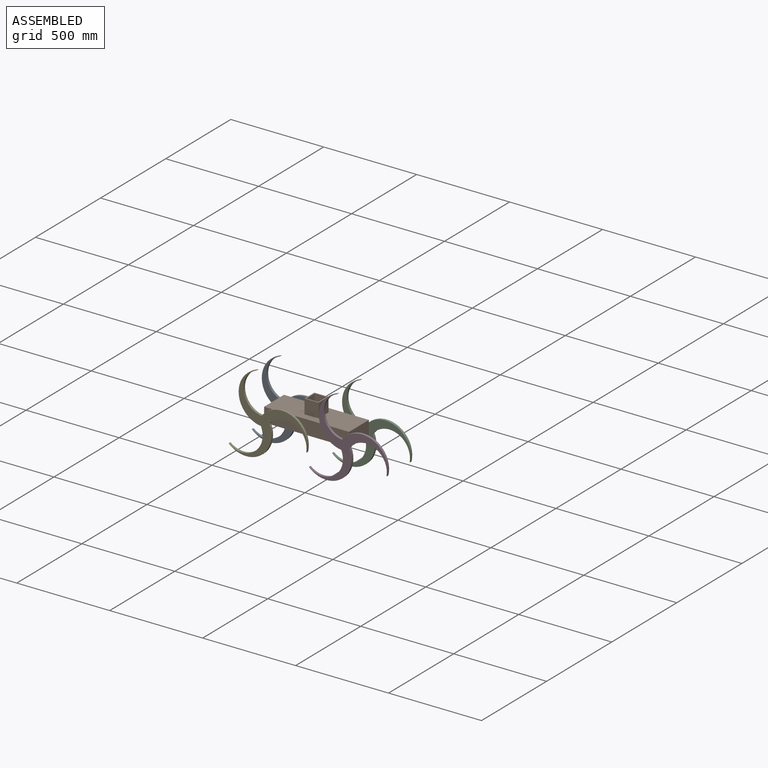
[diagram: assembled view]
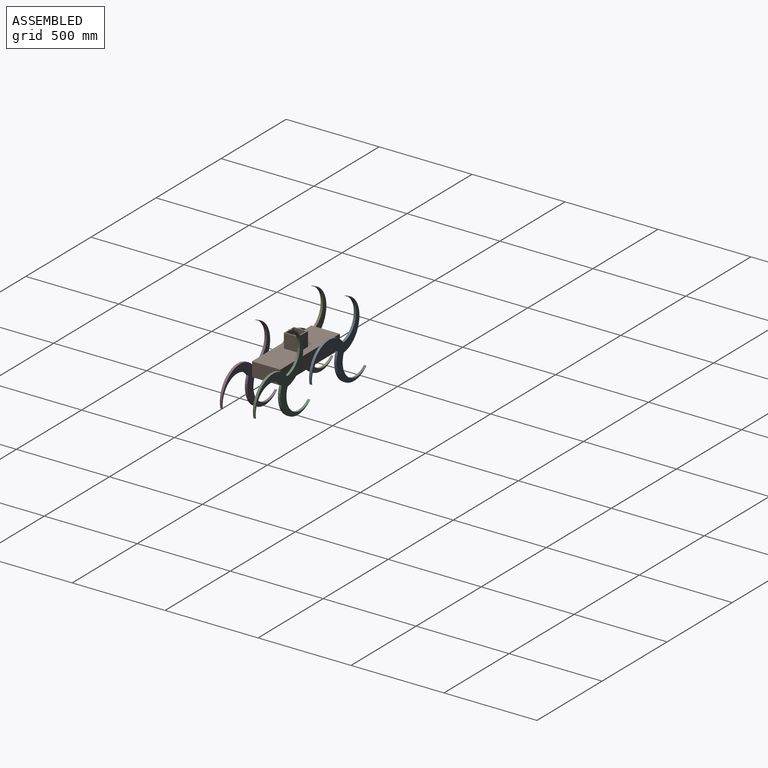
[diagram: assembled view, second angle]
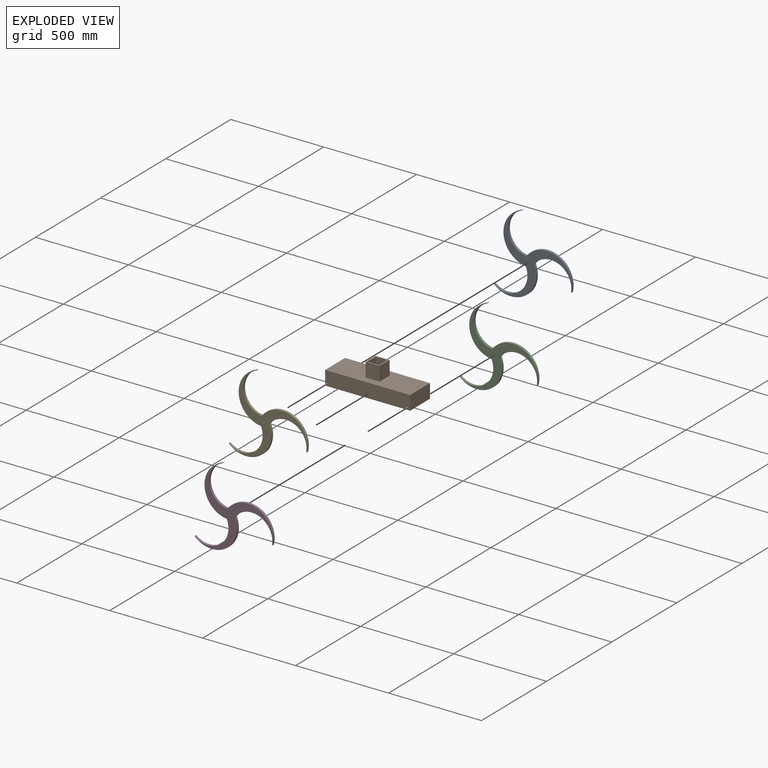
[diagram: exploded view]
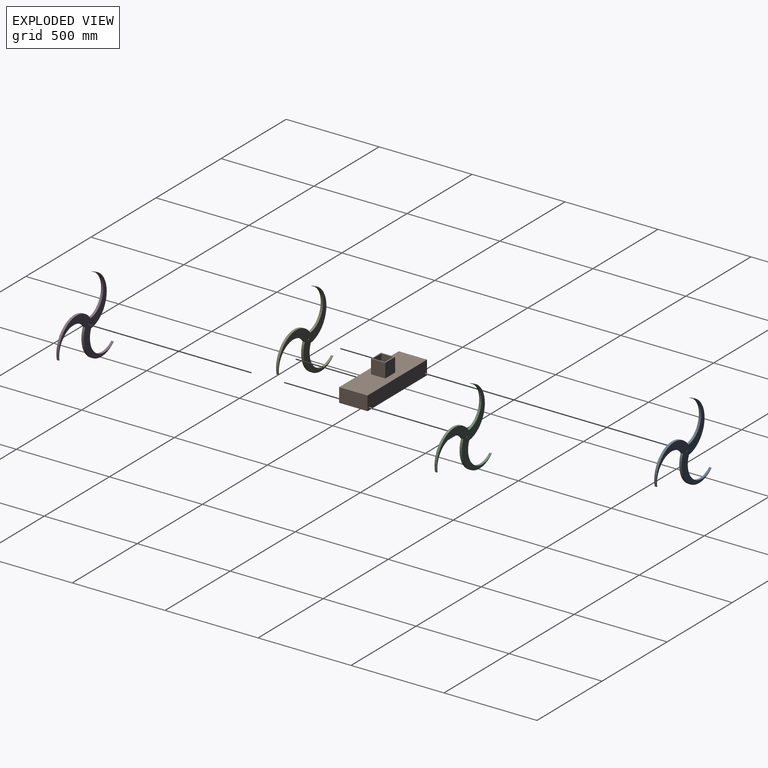
[diagram: exploded view, second angle]
ASSEMBLY  parts=5 mates=8
PART A: 12 faces, bbox 422.9x12.7x433.8 mm
  f0: cylinder r=110.97mm len=182.3mm, axis (0,1,0), area 3768.6mm2, adj f1,f8,f10,f11
  f1: cylinder r=136.37mm len=266.35mm, axis (0,1,0), area 4745.3mm2, adj f0,f2,f10,f11
  f2: plane 12.7x1.26mm, normal (-0.99,0,0.12), area 16.1mm2, adj f1,f3,f10,f11
  f3: cylinder r=110.97mm len=214.47mm, axis (0,1,0), area 3768.6mm2, adj f2,f4,f10,f11
  f4: cylinder r=136.37mm len=245.58mm, axis (0,1,0), area 4745.3mm2, adj f3,f5,f10,f11
  f5: plane 12.7x1.17mm, normal (0.4,0,-0.92), area 16.1mm2, adj f4,f6,f10,f11
  f6: cylinder r=110.97mm len=199.84mm, axis (0,1,0), area 3768.6mm2, adj f5,f7,f10,f11
  f7: cylinder r=136.37mm len=230.71mm, axis (0,1,0), area 4745.3mm2, adj f6,f8,f10,f11
  f8: plane 12.7x1.02mm, normal (0.6,0,0.8), area 16.1mm2, adj f0,f7,f10,f11
  f9: cylinder r=3.17mm len=12.7mm, axis (0,1,0), area 253.4mm2, adj f10,f11
  f10: plane 433.76x422.92mm, normal (0,-1,0), area 28408.7mm2, adj f0,f1,f2,f3,f4,f5,f6,f7
  f11: plane 433.76x422.92mm, normal (0,1,0), area 28408.7mm2, adj f0,f1,f2,f3,f4,f5,f6,f7
PART B: 24 faces, bbox 190.5x457.2x152.4 mm
  f0: plane 76.2x76.2mm, normal (0,0,1), area 1774.2mm2, adj f1,f2,f3,f4,f19,f20,f21,f22
  f1: plane 76.2x76.2mm, normal (1,0,0), area 5806.4mm2, adj f0,f2,f4,f5
  f2: plane 76.2x76.2mm, normal (0,1,0), area 5806.4mm2, adj f0,f1,f3,f5
  f3: plane 76.2x76.2mm, normal (-1,0,0), area 5806.4mm2, adj f0,f2,f4,f5
  f4: plane 76.2x76.2mm, normal (0,-1,0), area 5806.4mm2, adj f0,f1,f3,f5
  f5: plane 457.2x152.4mm, normal (0,0,1), area 63870.8mm2, adj f1,f2,f3,f4,f6,f7,f8,f9
  f6: plane 457.2x76.2mm, normal (1,0,0), area 34775.3mm2, adj f5,f7,f9,f10,f13,f17
  f7: plane 152.4x76.2mm, normal (0,-1,0), area 11612.9mm2, adj f5,f6,f8,f10
  f8: plane 457.2x76.2mm, normal (-1,0,0), area 34775.3mm2, adj f5,f7,f9,f10,f12,f16
  f9: plane 152.4x76.2mm, normal (0,1,0), area 11612.9mm2, adj f5,f6,f8,f10
  f10: plane 457.2x152.4mm, normal (0,0,-1), area 69677.3mm2, adj f6,f7,f8,f9
  f11: plane 6.35x6.35mm, normal (-1,0,0), area 31.7mm2, adj f12
  f12: cylinder r=3.17mm len=19.05mm, axis (-1,0,0), area 380mm2, adj f8,f11
  f13: cylinder r=3.17mm len=19.05mm, axis (-1,0,0), area 380mm2, adj f6,f14
  f14: plane 6.35x6.35mm, normal (1,0,0), area 31.7mm2, adj f13
  f15: plane 6.35x6.35mm, normal (-1,0,0), area 31.7mm2, adj f16
  f16: cylinder r=3.17mm len=19.05mm, axis (-1,0,0), area 380mm2, adj f8,f15
  f17: cylinder r=3.17mm len=19.05mm, axis (-1,0,0), area 380mm2, adj f6,f18
  f18: plane 6.35x6.35mm, normal (1,0,0), area 31.7mm2, adj f17
  f19: plane 69.85x63.5mm, normal (-1,0,0), area 4435.5mm2, adj f0,f20,f22,f23
  f20: plane 69.85x63.5mm, normal (0,-1,0), area 4435.5mm2, adj f0,f19,f21,f23
  f21: plane 69.85x63.5mm, normal (1,0,0), area 4435.5mm2, adj f0,f20,f22,f23
  f22: plane 69.85x63.5mm, normal (0,1,0), area 4435.5mm2, adj f0,f19,f21,f23
  f23: plane 63.5x63.5mm, normal (0,0,1), area 4032.2mm2, adj f19,f20,f21,f22
PART C: same geometry as A
PART D: same geometry as A
PART E: same geometry as A
PLACE A rot(axis=(0,0,1),180deg) t=(-316.62,315.2,29.76)mm
PLACE B rot(axis=(0,0,1),90deg) t=(-100.72,232.65,93.26)mm
PLACE C rot(axis=(0,0,1),180deg) t=(115.18,315.2,29.76)mm
PLACE D rot(axis=(0,0,-1),180deg) t=(115.18,137.4,29.76)mm
PLACE E rot(axis=(0,0,-1),180deg) t=(-316.62,137.4,29.76)mm
MATE cylindrical E.f9 <-> B.f12  axis (0,1,0) through (-316.62,150.1,29.76)mm
MATE fastened D.f9 <-> B.f16  axis (0,-1,0) through (115.18,137.4,29.76)mm
MATE fastened E.f9 <-> B.f12  axis (0,-1,0) through (-316.62,137.4,29.76)mm
MATE cylindrical C.f9 <-> B.f16  axis (0,-1,0) through (115.18,315.2,29.76)mm
MATE fastened B.f16 <-> C.f9  axis (0,1,0) through (115.18,327.9,29.76)mm
MATE cylindrical D.f9 <-> B.f16  axis (0,1,0) through (115.18,150.1,29.76)mm
MATE cylindrical A.f9 <-> B.f12  axis (0,-1,0) through (-316.62,315.2,29.76)mm
MATE fastened A.f9 <-> B.f12  axis (0,1,0) through (-316.62,327.9,29.76)mm
